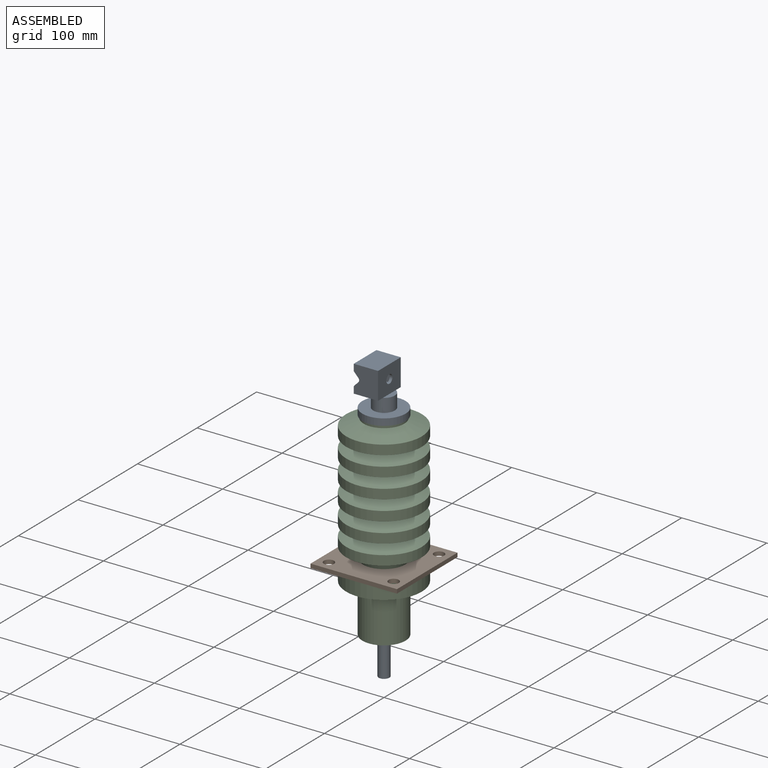
[diagram: assembled view]
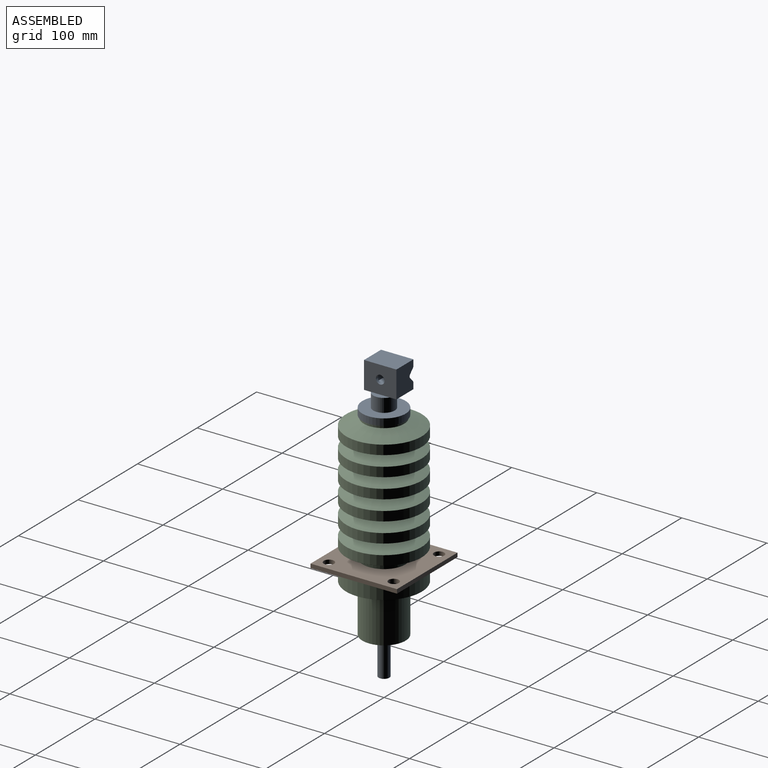
[diagram: assembled view, second angle]
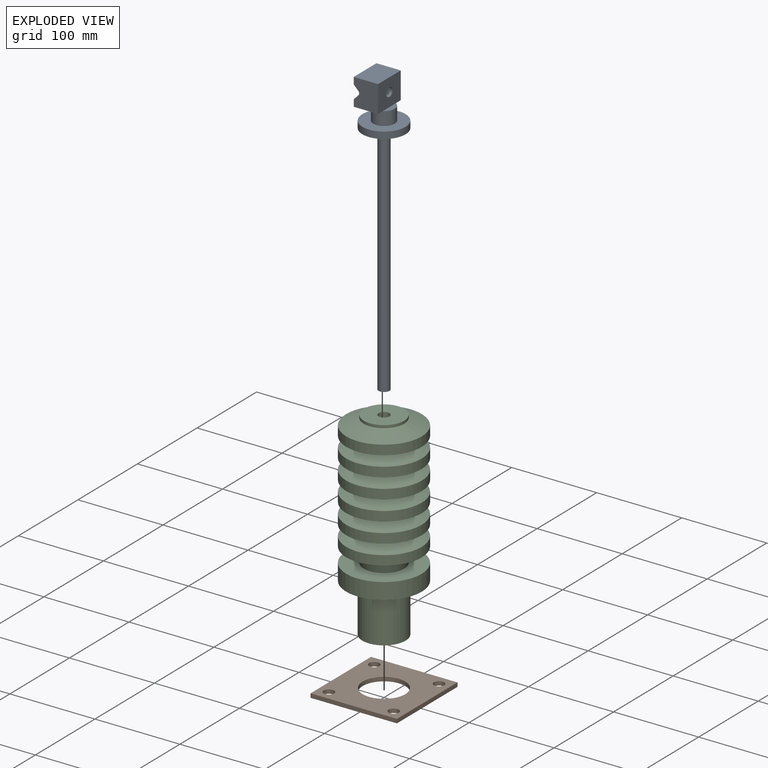
[diagram: exploded view]
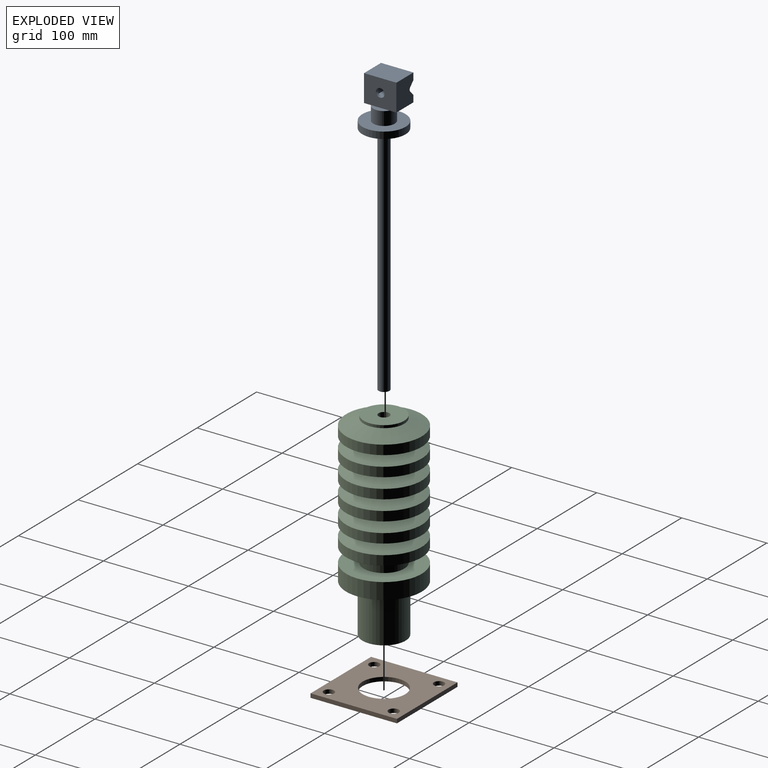
[diagram: exploded view, second angle]
ASSEMBLY  parts=3 mates=2
PART A: 26 faces, bbox 333.4x50.8x50.8 mm
  f0: plane 38.1x7.94mm, normal (0,0,1), area 151.2mm2, adj f4,f16,f17,f18,f19,f21,f22,f23
  f1: plane 38.1x7.94mm, normal (0,0,1), area 151.2mm2, adj f2,f13,f14,f17,f18,f21,f23,f24
  f2: plane 5.75x5.47mm, normal (-0.69,0,0.72), area 25.2mm2, adj f1,f3,f18,f21
  f3: cylinder r=3.17mm len=4.38mm, axis (0,1,0), area 15.3mm2, adj f2,f4,f18,f21
  f4: plane 5.75x5.47mm, normal (0.69,0,0.72), area 25.2mm2, adj f0,f3,f18,f21
  f5: plane 12.7x12.7mm, normal (1,0,0), area 126.7mm2, adj f6
  f6: cylinder r=6.35mm len=277.81mm, axis (1,0,0), area 11084.2mm2, adj f5,f7
  f7: plane 50.8x50.8mm, normal (1,0,0), area 1900.2mm2, adj f6,f8
  f8: cylinder r=25.4mm len=50.8mm, axis (1,0,0), area 1266.8mm2, adj f7,f9
  f9: plane 50.8x50.8mm, normal (-1,0,0), area 1520.1mm2, adj f8,f10
  f10: cylinder r=12.7mm len=25.4mm, axis (1,0,0), area 1266.8mm2, adj f9,f11,f13
  f11: plane 22x6.35mm, normal (-1,0,0), area 99.1mm2, adj f10,f12
  f12: plane 38.1x31.75mm, normal (0,0,-1), area 1128.6mm2, adj f11,f13,f17,f18,f19,f25
  f13: plane 38.1x28.58mm, normal (1,0,0), area 681.1mm2, adj f1,f10,f12,f17,f18
  f14: plane 5.75x5.47mm, normal (-0.69,0,0.72), area 25.2mm2, adj f1,f15,f17,f23
  f15: cylinder r=3.17mm len=4.38mm, axis (0,1,0), area 15.3mm2, adj f14,f16,f17,f23
  f16: plane 5.75x5.47mm, normal (0.69,0,0.72), area 25.2mm2, adj f0,f15,f17,f23
  f17: plane 31.75x28.58mm, normal (0,-1,0), area 849.2mm2, adj f0,f1,f12,f13,f14,f15,f16,f19
  f18: plane 31.75x28.58mm, normal (0,1,0), area 849.2mm2, adj f0,f1,f2,f3,f4,f12,f13,f19
  f19: plane 38.1x28.58mm, normal (-1,0,0), area 1088.7mm2, adj f0,f12,f17,f18
  f20: plane 31.75x25.4mm, normal (0,0,1), area 725.4mm2, adj f21,f22,f23,f24,f25
  f21: plane 25.4x25.4mm, normal (0,-1,0), area 587.1mm2, adj f0,f1,f2,f3,f4,f20,f22,f24
  f22: plane 31.75x25.4mm, normal (1,0,0), area 806.5mm2, adj f0,f20,f21,f23
  f23: plane 25.4x25.4mm, normal (0,1,0), area 587.1mm2, adj f0,f1,f14,f15,f16,f20,f22,f24
  f24: plane 31.75x25.4mm, normal (-1,0,0), area 806.5mm2, adj f1,f20,f21,f23
  f25: cylinder r=5.08mm len=10.16mm, axis (0,0,1), area 101.3mm2, adj f12,f20
PART B: 11 faces, bbox 4.8x101.6x101.6 mm
  f0: plane 101.6x4.76mm, normal (0,0,1), area 483.9mm2, adj f1,f8,f9,f10
  f1: plane 101.6x4.76mm, normal (0,1,0), area 483.9mm2, adj f0,f2,f9,f10
  f2: plane 101.6x4.76mm, normal (0,0,-1), area 483.9mm2, adj f1,f8,f9,f10
  f3: cylinder r=6.03mm len=12.07mm, axis (1,0,0), area 180.5mm2, adj f9,f10
  f4: cylinder r=6.03mm len=12.07mm, axis (1,0,0), area 180.5mm2, adj f9,f10
  f5: cylinder r=6.03mm len=12.07mm, axis (1,0,0), area 180.5mm2, adj f9,f10
  f6: cylinder r=6.03mm len=12.07mm, axis (1,0,0), area 180.5mm2, adj f9,f10
  f7: cylinder r=25.08mm len=50.17mm, axis (1,0,0), area 750.6mm2, adj f9,f10
  f8: plane 101.6x4.76mm, normal (0,-1,0), area 483.9mm2, adj f0,f2,f9,f10
  f9: plane 101.6x101.6mm, normal (-1,0,0), area 7888.8mm2, adj f0,f1,f2,f3,f4,f5,f6,f7
  f10: plane 101.6x101.6mm, normal (1,0,0), area 7888.8mm2, adj f0,f1,f2,f3,f4,f5,f6,f7
PART C: 32 faces, bbox 233.4x88.9x88.9 mm
  f0: cylinder r=6.35mm len=233.36mm, axis (1,0,0), area 9310.7mm2, adj f1,f31
  f1: plane 50.8x50.8mm, normal (1,0,0), area 1900.2mm2, adj f0,f2
  f2: cylinder r=25.4mm len=57.15mm, axis (1,0,0), area 9120.7mm2, adj f1,f3
  f3: plane 88.9x88.9mm, normal (1,0,0), area 4180.3mm2, adj f2,f4
  f4: cylinder r=44.45mm len=88.9mm, axis (1,0,0), area 5320.4mm2, adj f3,f5
  f5: plane 88.9x88.9mm, normal (-1,0,0), area 4425.8mm2, adj f4,f6
  f6: cylinder r=23.81mm len=47.63mm, axis (1,0,0), area 3800.3mm2, adj f5,f7
  f7: cone r=44.45mm half-angle=69deg, axis (1,0,0), area 4741.8mm2, adj f6,f8
  f8: cylinder r=44.45mm len=88.9mm, axis (1,0,0), area 3103.6mm2, adj f7,f9
  f9: cone r=44.45mm half-angle=69deg, axis (1,0,0), area 4741.8mm2, adj f8,f10
  f10: cylinder r=23.81mm len=47.63mm, axis (1,0,0), area 1852.6mm2, adj f9,f11
  f11: cone r=44.45mm half-angle=69deg, axis (1,0,0), area 4741.8mm2, adj f10,f12
  f12: cylinder r=44.45mm len=88.9mm, axis (1,0,0), area 3103.6mm2, adj f11,f13
  f13: cone r=44.45mm half-angle=69deg, axis (1,0,0), area 4741.8mm2, adj f12,f14
  f14: cylinder r=23.81mm len=47.63mm, axis (1,0,0), area 1852.6mm2, adj f13,f15
  f15: cone r=44.45mm half-angle=69deg, axis (1,0,0), area 4741.8mm2, adj f14,f16
  f16: cylinder r=44.45mm len=88.9mm, axis (1,0,0), area 3103.6mm2, adj f15,f17
  f17: cone r=44.45mm half-angle=69deg, axis (1,0,0), area 4741.8mm2, adj f16,f18
  f18: cylinder r=23.81mm len=47.63mm, axis (1,0,0), area 1852.6mm2, adj f17,f19
  f19: cone r=44.45mm half-angle=69deg, axis (1,0,0), area 4741.8mm2, adj f18,f20
  f20: cylinder r=44.45mm len=88.9mm, axis (1,0,0), area 3103.6mm2, adj f19,f21
  f21: cone r=44.45mm half-angle=69deg, axis (1,0,0), area 4741.8mm2, adj f20,f22
  f22: cylinder r=23.81mm len=47.63mm, axis (1,0,0), area 1852.6mm2, adj f21,f23
  f23: cone r=44.45mm half-angle=69deg, axis (1,0,0), area 4741.8mm2, adj f22,f24
  f24: cylinder r=44.45mm len=88.9mm, axis (1,0,0), area 3103.6mm2, adj f23,f25
  f25: cone r=44.45mm half-angle=69deg, axis (1,0,0), area 4741.8mm2, adj f24,f26
  f26: cylinder r=23.81mm len=47.63mm, axis (1,0,0), area 1852.6mm2, adj f25,f27
  f27: cone r=44.45mm half-angle=69deg, axis (1,0,0), area 4741.8mm2, adj f26,f28
  f28: cylinder r=44.45mm len=88.9mm, axis (1,0,0), area 3103.6mm2, adj f27,f29
  f29: cone r=44.45mm half-angle=69deg, axis (1,0,0), area 4741.8mm2, adj f28,f30
  f30: cylinder r=23.81mm len=47.63mm, axis (1,0,0), area 475mm2, adj f29,f31
  f31: plane 47.63x47.63mm, normal (-1,0,0), area 1654.7mm2, adj f0,f30
PLACE A rot(axis=(0.71,0,-0.71),180deg) t=(939.8,-203.2,-660.4)mm
PLACE B rot(axis=(0,1,0),90deg) t=(-939.8,203.2,-660.4)mm
PLACE C rot(axis=(0.71,0,-0.71),180deg) t=(939.8,-203.2,-660.4)mm
MATE fastened A.f6 <-> C.f0  axis (0,0,-1) through (0,0,176.21)mm
MATE fastened B.f7 <-> C.f0  axis (0,0,-1) through (0,0,19.05)mm
